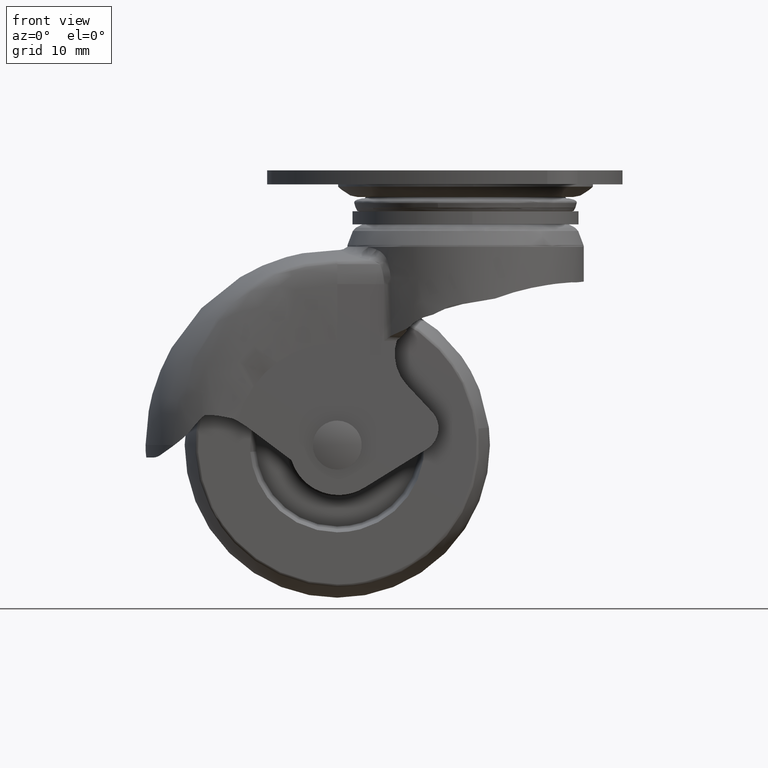
[diagram: clean part render]
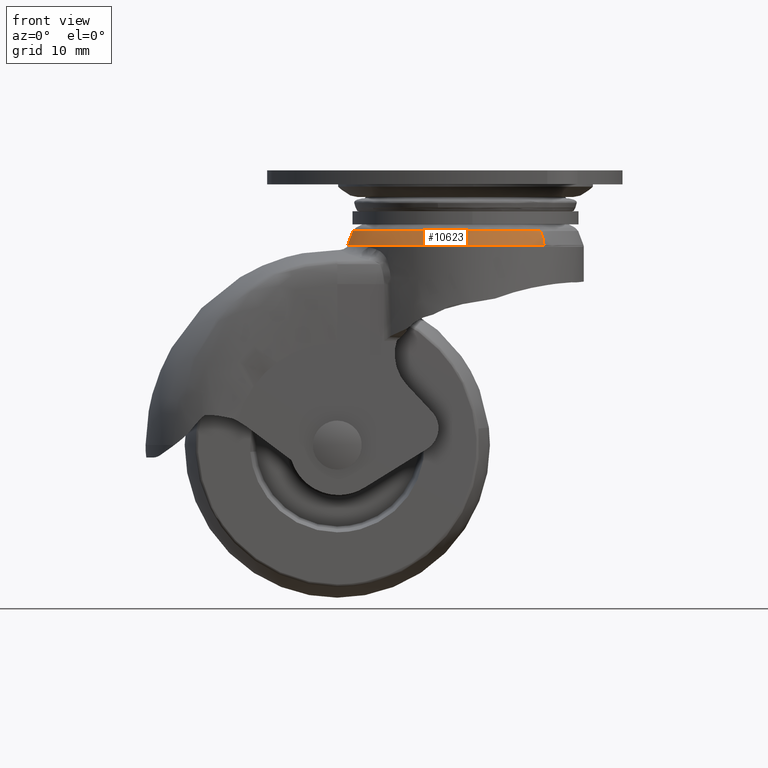
[diagram: same view with one face highlighted and labeled with its STEP entity id]
A machine part, front view. The second image highlights one B-rep face of the part: STEP entity #10623.
In plain terms, the highlighted face is a freeform B-spline surface patch.
Its self-contained STEP definition (entity closure, byte-faithful):
#10227=CARTESIAN_POINT('',(-10.281517890184309,-16.357497162013491,-12.222365086709210));
#10228=VERTEX_POINT('',#10227);
#10229=CARTESIAN_POINT('',(-19.320386281067751,0.0,-12.222365077004040));
#10230=VERTEX_POINT('',#10229);
#10231=CARTESIAN_POINT('',(-10.281517890184313,-16.357497162013491,-12.222365086709212));
#10232=CARTESIAN_POINT('',(-19.320386281067748,-10.676109301247035,-12.222365077004037));
#10233=CARTESIAN_POINT('',(-19.320386281067751,0.0,-12.222365077004040));
#10241=(BOUNDED_CURVE()B_SPLINE_CURVE(2,(#10231,#10232,#10233),.UNSPECIFIED.,.F.,.U.)B_SPLINE_CURVE_WITH_KNOTS((3,3),(0.841020843154746,1.0),.UNSPECIFIED.)CURVE()GEOMETRIC_REPRESENTATION_ITEM()RATIONAL_B_SPLINE_CURVE((0.864374816529963,0.813744332109379,1.0))REPRESENTATION_ITEM(''));
#10242=EDGE_CURVE('',#10228,#10230,#10241,.T.);
#10244=CARTESIAN_POINT('',(-15.185509792240120,11.944773685568141,-12.222365077002451));
#10245=VERTEX_POINT('',#10244);
#10246=CARTESIAN_POINT('',(-19.320386281067751,0.0,-12.222365077004040));
#10247=CARTESIAN_POINT('',(-19.320386281067751,6.688064009548465,-12.222365077004037));
#10248=CARTESIAN_POINT('',(-15.185509792240122,11.944773685568132,-12.222365077002456));
#10256=(BOUNDED_CURVE()B_SPLINE_CURVE(2,(#10246,#10247,#10248),.UNSPECIFIED.,.F.,.U.)B_SPLINE_CURVE_WITH_KNOTS((3,3),(0.0,0.107040093182928),.UNSPECIFIED.)CURVE()GEOMETRIC_REPRESENTATION_ITEM()RATIONAL_B_SPLINE_CURVE((1.0,0.874594730262241,0.856576594591362))REPRESENTATION_ITEM(''));
#10257=EDGE_CURVE('',#10230,#10245,#10256,.T.);
#10276=CARTESIAN_POINT('',(12.867606546604780,-14.411871072536250,-12.222365076997580));
#10277=VERTEX_POINT('',#10276);
#10291=CARTESIAN_POINT('',(7.337478802210268,-17.872848915564251,-12.222365086711280));
#10292=VERTEX_POINT('',#10291);
#10293=CARTESIAN_POINT('',(12.867606546604783,-14.411871072536250,-12.222365076997583));
#10294=CARTESIAN_POINT('',(10.398962321390984,-16.615994495077352,-12.222365077004042));
#10295=CARTESIAN_POINT('',(7.337478802210268,-17.872848915564251,-12.222365086711283));
#10303=(BOUNDED_CURVE()B_SPLINE_CURVE(2,(#10293,#10294,#10295),.UNSPECIFIED.,.F.,.U.)B_SPLINE_CURVE_WITH_KNOTS((3,3),(0.633534809512156,0.685520056552350),.UNSPECIFIED.)CURVE()GEOMETRIC_REPRESENTATION_ITEM()RATIONAL_B_SPLINE_CURVE((0.854236117407662,0.858394584220121,0.887882137082619))REPRESENTATION_ITEM(''));
#10304=EDGE_CURVE('',#10277,#10292,#10303,.T.);
#10403=CARTESIAN_POINT('',(7.337478802210268,-17.872848915564251,-12.222365086711280));
#10404=CARTESIAN_POINT('',(3.811524442196840,-19.320386281067744,-12.222365077004033));
#10405=CARTESIAN_POINT('',(0.0,-19.320386281067751,-12.222365077004040));
#10406=CARTESIAN_POINT('',(-5.567676061104331,-19.320386281067748,-12.222365077004044));
#10407=CARTESIAN_POINT('',(-10.281517890184311,-16.357497162013487,-12.222365086709214));
#10415=(BOUNDED_CURVE()B_SPLINE_CURVE(2,(#10403,#10404,#10405,#10406,#10407),.UNSPECIFIED.,.F.,.U.)B_SPLINE_CURVE_WITH_KNOTS((3,2,3),(0.685520056552351,0.750000000000000,0.841020843154745),.UNSPECIFIED.)CURVE()GEOMETRIC_REPRESENTATION_ITEM()RATIONAL_B_SPLINE_CURVE((0.887882137082620,0.924457047258835,1.0,0.893362449077169,0.864374816529964))REPRESENTATION_ITEM(''));
#10416=EDGE_CURVE('',#10292,#10228,#10415,.T.);
#10468=CARTESIAN_POINT('',(-14.506845093821230,11.410942662348980,-9.948124202593856));
#10469=VERTEX_POINT('',#10468);
#10470=CARTESIAN_POINT('',(-14.506845093821227,11.410942662348987,-9.948124202593856));
#10471=CARTESIAN_POINT('',(-15.041376766485314,11.831400055258014,-10.990953700053220));
#10472=CARTESIAN_POINT('',(-15.185509792240117,11.944773685568139,-12.222365077002456));
#10480=(BOUNDED_CURVE()B_SPLINE_CURVE(2,(#10470,#10471,#10472),.UNSPECIFIED.,.F.,.U.)B_SPLINE_CURVE_WITH_KNOTS((3,3),(-1.416584729659875,-0.601432068472787),.UNSPECIFIED.)CURVE()GEOMETRIC_REPRESENTATION_ITEM()RATIONAL_B_SPLINE_CURVE((0.887334387250945,0.866458651926299,0.886431536324263))REPRESENTATION_ITEM(''));
#10481=EDGE_CURVE('',#10469,#10245,#10480,.T.);
#10515=CARTESIAN_POINT('',(12.292532648088930,-13.767781524678190,-9.948124202430240));
#10516=VERTEX_POINT('',#10515);
#10530=CARTESIAN_POINT('',(12.292532648088931,-13.767781524678192,-9.948124202430240));
#10531=CARTESIAN_POINT('',(12.745473862783795,-14.275081026416514,-10.990953699846472));
#10532=CARTESIAN_POINT('',(12.867606546604785,-14.411871072536250,-12.222365076997573));
#10540=(BOUNDED_CURVE()B_SPLINE_CURVE(2,(#10530,#10531,#10532),.UNSPECIFIED.,.F.,.U.)B_SPLINE_CURVE_WITH_KNOTS((3,3),(-1.416584729790852,-0.601432068476092),.UNSPECIFIED.)CURVE()GEOMETRIC_REPRESENTATION_ITEM()RATIONAL_B_SPLINE_CURVE((0.945843356682675,0.923591119120907,0.944880973651161))REPRESENTATION_ITEM(''));
#10541=EDGE_CURVE('',#10516,#10277,#10540,.T.);
#10547=CARTESIAN_POINT('',(12.247685254033733,-13.717551914479499,-9.847231442757485));
#10548=CARTESIAN_POINT('',(-1.469866660445768,-25.965237168513234,-9.847231442757483));
#10549=CARTESIAN_POINT('',(-13.717551914479499,-12.247685254033733,-9.847231442757485));
#10550=CARTESIAN_POINT('',(-23.985157175751706,-0.747846281400346,-9.847231442757483));
#10551=CARTESIAN_POINT('',(-14.453919125035462,11.369311612197530,-9.847231442757485));
#10552=CARTESIAN_POINT('',(12.763291904339823,-14.295037443077250,-10.980867439715151));
#10553=CARTESIAN_POINT('',(-1.531745538737438,-27.058329347417079,-10.980867439715153));
#10554=CARTESIAN_POINT('',(-14.295037443077250,-12.763291904339823,-10.980867439715151));
#10555=CARTESIAN_POINT('',(-24.994891365678029,-0.779329333756684,-10.980867439715151));
#10556=CARTESIAN_POINT('',(-15.062404456694377,11.847940230998834,-10.980867439715155));
#10557=CARTESIAN_POINT('',(12.878666009638756,-14.424257801553031,-12.342653488241046));
#10558=CARTESIAN_POINT('',(-1.545591791914283,-27.302923811191782,-12.342653488241041));
#10559=CARTESIAN_POINT('',(-14.424257801553031,-12.878666009638756,-12.342653488241046));
#10560=CARTESIAN_POINT('',(-25.220833328768183,-0.786374101304845,-12.342653488241044));
#10561=CARTESIAN_POINT('',(-15.198561449017870,11.955039991313948,-12.342653488241044));
#10569=(BOUNDED_SURFACE()B_SPLINE_SURFACE(2,2,((#10547,#10552,#10557),(#10548,#10553,#10558),(#10549,#10554,#10559),(#10550,#10555,#10560),(#10551,#10556,#10561)),.UNSPECIFIED.,.F.,.F.,.U.)B_SPLINE_SURFACE_WITH_KNOTS((3,2,3),(3,3),(0.0,32.038577012247487,60.232524783025283),(0.0,2.706829013969669),.UNSPECIFIED.)GEOMETRIC_REPRESENTATION_ITEM()RATIONAL_B_SPLINE_SURFACE(((0.948175008354762,0.921307541079922,0.947116478241735),(0.670460978159264,0.651462809855916,0.669712484338252),(0.948175008354762,0.921307541079922,0.947116478241735),(0.703786661782724,0.683844177602797,0.703000963606670),(0.889521805177473,0.864316333845411,0.888528754729319)))REPRESENTATION_ITEM('')SURFACE());
#10570=ORIENTED_EDGE('',*,*,#10257,.F.);
#10571=ORIENTED_EDGE('',*,*,#10242,.F.);
#10572=ORIENTED_EDGE('',*,*,#10416,.F.);
#10573=ORIENTED_EDGE('',*,*,#10304,.F.);
#10574=ORIENTED_EDGE('',*,*,#10541,.F.);
#10575=CARTESIAN_POINT('',(3.185542759621297,-18.179946922916439,-9.948124453559572));
#10576=VERTEX_POINT('',#10575);
#10577=CARTESIAN_POINT('',(12.292532648088926,-13.767781524678199,-9.948124202430240));
#10578=CARTESIAN_POINT('',(8.367901495912111,-17.271879071016212,-9.948124453590820));
#10579=CARTESIAN_POINT('',(3.185542759621298,-18.179946922916436,-9.948124453559572));
#10587=(BOUNDED_CURVE()B_SPLINE_CURVE(2,(#10577,#10578,#10579),.UNSPECIFIED.,.F.,.U.)B_SPLINE_CURVE_WITH_KNOTS((3,3),(0.633534809512133,0.720327524041920),.UNSPECIFIED.)CURVE()GEOMETRIC_REPRESENTATION_ITEM()RATIONAL_B_SPLINE_CURVE((0.854236117407659,0.861178945296026,0.938725209393235))REPRESENTATION_ITEM(''));
#10588=EDGE_CURVE('',#10516,#10576,#10587,.T.);
#10589=ORIENTED_EDGE('',*,*,#10588,.T.);
#10590=CARTESIAN_POINT('',(-18.456926959659000,0.0,-9.948124453590820));
#10591=VERTEX_POINT('',#10590);
#10592=CARTESIAN_POINT('',(3.185542759621297,-18.179946922916439,-9.948124453559572));
#10593=CARTESIAN_POINT('',(1.604812960579028,-18.456926959659000,-9.948124453590820));
#10594=CARTESIAN_POINT('',(0.0,-18.456926959659000,-9.948124453590820));
#10595=CARTESIAN_POINT('',(-18.456926959659004,-18.456926959659004,-9.948124453590820));
#10596=CARTESIAN_POINT('',(-18.456926959659000,0.0,-9.948124453590820));
#10604=(BOUNDED_CURVE()B_SPLINE_CURVE(2,(#10592,#10593,#10594,#10595,#10596),.UNSPECIFIED.,.F.,.U.)B_SPLINE_CURVE_WITH_KNOTS((3,2,3),(0.720327524041921,0.750000000000000,1.0),.UNSPECIFIED.)CURVE()GEOMETRIC_REPRESENTATION_ITEM()RATIONAL_B_SPLINE_CURVE((0.938725209393236,0.965236532025893,1.0,0.707106781186548,1.0))REPRESENTATION_ITEM(''));
#10605=EDGE_CURVE('',#10576,#10591,#10604,.T.);
#10606=ORIENTED_EDGE('',*,*,#10605,.T.);
#10607=CARTESIAN_POINT('',(-18.456926959659000,0.0,-9.948124453590820));
#10608=CARTESIAN_POINT('',(-18.456926959659000,6.389163608353082,-9.948124453590820));
#10609=CARTESIAN_POINT('',(-14.506845093821228,11.410942662348980,-9.948124202593856));
#10617=(BOUNDED_CURVE()B_SPLINE_CURVE(2,(#10607,#10608,#10609),.UNSPECIFIED.,.F.,.U.)B_SPLINE_CURVE_WITH_KNOTS((3,3),(0.0,0.107040093183355),.UNSPECIFIED.)CURVE()GEOMETRIC_REPRESENTATION_ITEM()RATIONAL_B_SPLINE_CURVE((1.0,0.874594730261742,0.856576594591218))REPRESENTATION_ITEM(''));
#10618=EDGE_CURVE('',#10591,#10469,#10617,.T.);
#10619=ORIENTED_EDGE('',*,*,#10618,.T.);
#10620=ORIENTED_EDGE('',*,*,#10481,.T.);
#10621=EDGE_LOOP('',(#10570,#10571,#10572,#10573,#10574,#10589,#10606,#10619,#10620));
#10622=FACE_OUTER_BOUND('',#10621,.T.);
#10623=ADVANCED_FACE('',(#10622),#10569,.T.);